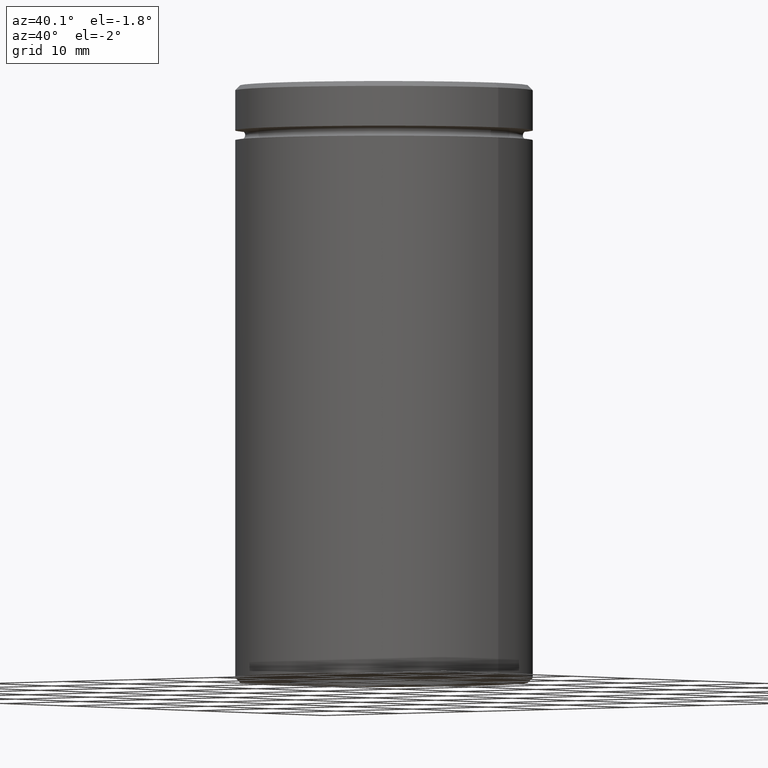
[diagram: clean part render]
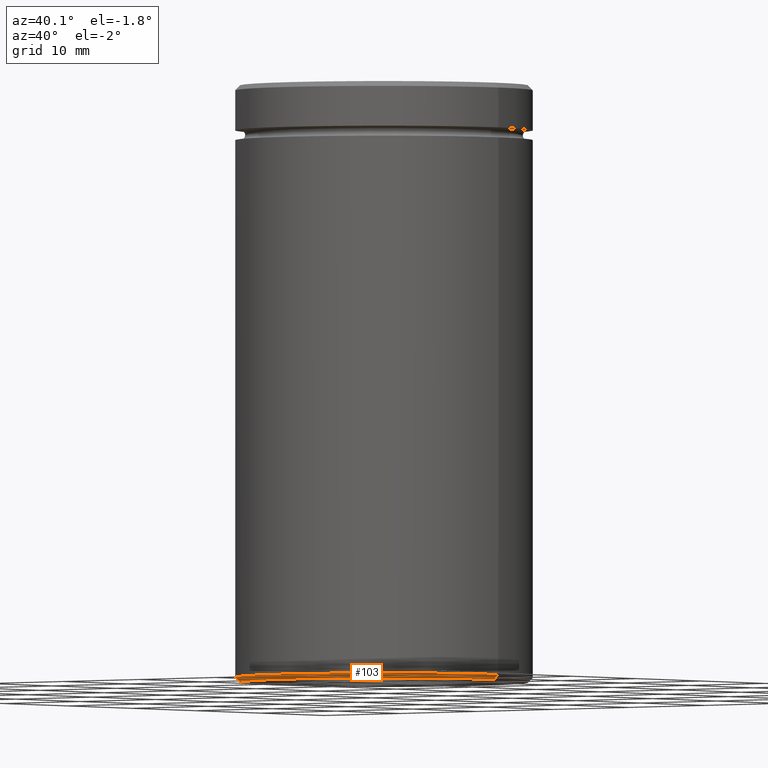
[diagram: same view with one face highlighted and labeled with its STEP entity id]
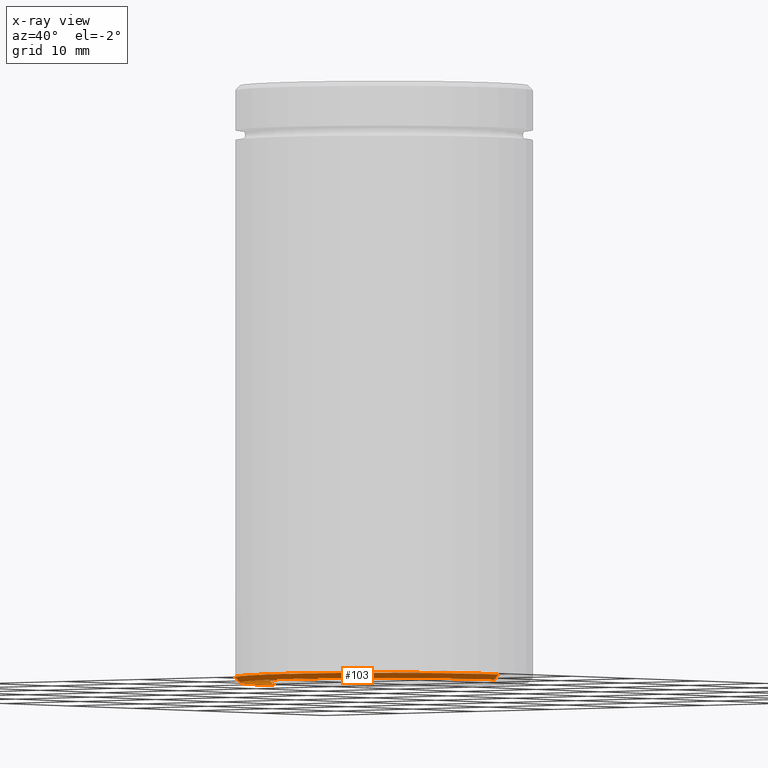
[diagram: x-ray of the same camera — body ghosted, the highlighted face saturated]
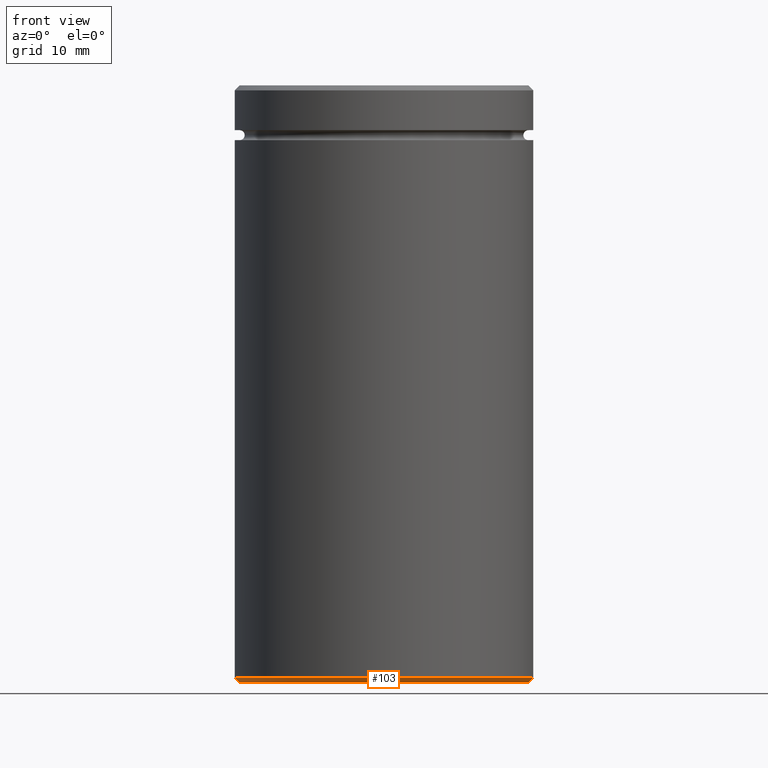
[diagram: same view with one face highlighted and labeled with its STEP entity id]
A machine part, auxiliary view. The second image highlights one B-rep face of the part: STEP entity #103.
The next image is the same camera in x-ray: the body ghosted, the highlighted face saturated — about 3% of this face is hidden behind the body in this view.
A second angle (front view) of the same face is appended — the face is thin or edge-on in the first view.
In plain terms, the highlighted conical surface has half-angle 45 deg.
Its self-contained STEP definition (entity closure, byte-faithful):
#7 = CARTESIAN_POINT ( 'NONE',  ( 15.00000000000000000, 0.000000000000000000, -59.49999999999998579 ) ) ;
#35 = AXIS2_PLACEMENT_3D ( 'NONE', #276, #112, #272 ) ;
#45 = VERTEX_POINT ( 'NONE', #209 ) ;
#53 = EDGE_CURVE ( 'NONE', #509, #161, #270, .T. ) ;
#57 = DIRECTION ( 'NONE',  ( 0.000000000000000000, 0.000000000000000000, -1.000000000000000000 ) ) ;
#77 = CARTESIAN_POINT ( 'NONE',  ( 0.000000000000000000, 0.000000000000000000, -59.49999999999998579 ) ) ;
#103 = ADVANCED_FACE ( 'NONE', ( #226 ), #467, .T. ) ;
#105 = AXIS2_PLACEMENT_3D ( 'NONE', #77, #280, #459 ) ;
#112 = DIRECTION ( 'NONE',  ( -0.000000000000000000, -0.000000000000000000, 1.000000000000000000 ) ) ;
#161 = VERTEX_POINT ( 'NONE', #210 ) ;
#190 = CIRCLE ( 'NONE', #105, 15.00000000000000000 ) ;
#199 = EDGE_CURVE ( 'NONE', #509, #363, #361, .T. ) ;
#206 = ORIENTED_EDGE ( 'NONE', *, *, #53, .F. ) ;
#209 = CARTESIAN_POINT ( 'NONE',  ( -15.00000000000000000, 1.836970198721029589E-15, -59.49999999999998579 ) ) ;
#210 = CARTESIAN_POINT ( 'NONE',  ( -14.49999999999999645, 1.806354028742345802E-15, -60.00000000000000000 ) ) ;
#226 = FACE_OUTER_BOUND ( 'NONE', #240, .T. ) ;
#240 = EDGE_LOOP ( 'NONE', ( #489, #206, #339, #545 ) ) ;
#241 = DIRECTION ( 'NONE',  ( 0.7071067811865389130, 0.000000000000000000, 0.7071067811865561215 ) ) ;
#270 = CIRCLE ( 'NONE', #367, 14.49999999999999645 ) ;
#272 = DIRECTION ( 'NONE',  ( 1.000000000000000000, 0.000000000000000000, 0.000000000000000000 ) ) ;
#276 = CARTESIAN_POINT ( 'NONE',  ( 0.000000000000000000, 0.000000000000000000, -59.49999999999998579 ) ) ;
#280 = DIRECTION ( 'NONE',  ( -0.000000000000000000, -0.000000000000000000, 1.000000000000000000 ) ) ;
#290 = DIRECTION ( 'NONE',  ( -0.7071067811865389130, 8.659560562354828088E-17, 0.7071067811865561215 ) ) ;
#334 = VECTOR ( 'NONE', #290, 1000.000000000000000 ) ;
#339 = ORIENTED_EDGE ( 'NONE', *, *, #199, .T. ) ;
#361 = LINE ( 'NONE', #460, #435 ) ;
#363 = VERTEX_POINT ( 'NONE', #7 ) ;
#367 = AXIS2_PLACEMENT_3D ( 'NONE', #418, #57, #372 ) ;
#372 = DIRECTION ( 'NONE',  ( -1.000000000000000000, 0.000000000000000000, 0.000000000000000000 ) ) ;
#387 = CARTESIAN_POINT ( 'NONE',  ( 14.49999999999999645, 0.000000000000000000, -60.00000000000000000 ) ) ;
#391 = EDGE_CURVE ( 'NONE', #161, #45, #535, .T. ) ;
#418 = CARTESIAN_POINT ( 'NONE',  ( 0.000000000000000000, 0.000000000000000000, -60.00000000000000000 ) ) ;
#435 = VECTOR ( 'NONE', #241, 1000.000000000000000 ) ;
#456 = EDGE_CURVE ( 'NONE', #45, #363, #190, .T. ) ;
#459 = DIRECTION ( 'NONE',  ( -1.000000000000000000, 0.000000000000000000, 0.000000000000000000 ) ) ;
#460 = CARTESIAN_POINT ( 'NONE',  ( 15.00000000000000000, 0.000000000000000000, -59.49999999999998579 ) ) ;
#467 = CONICAL_SURFACE ( 'NONE', #35, 15.00000000000000000, 0.7853981633974361776 ) ;
#489 = ORIENTED_EDGE ( 'NONE', *, *, #391, .F. ) ;
#506 = CARTESIAN_POINT ( 'NONE',  ( -15.00000000000000000, 1.836970198721029589E-15, -59.49999999999998579 ) ) ;
#509 = VERTEX_POINT ( 'NONE', #387 ) ;
#535 = LINE ( 'NONE', #506, #334 ) ;
#545 = ORIENTED_EDGE ( 'NONE', *, *, #456, .F. ) ;